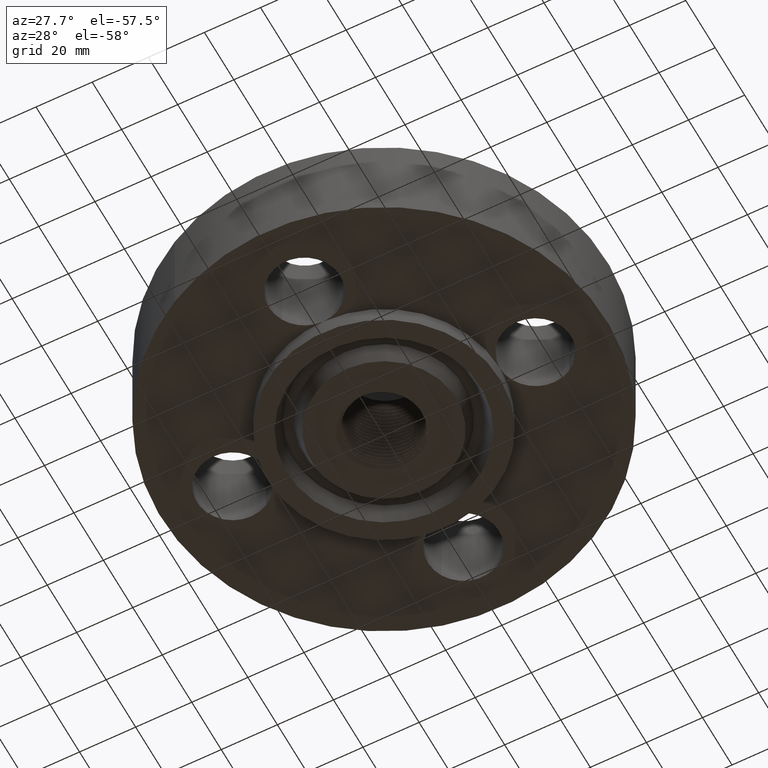
[diagram: clean part render]
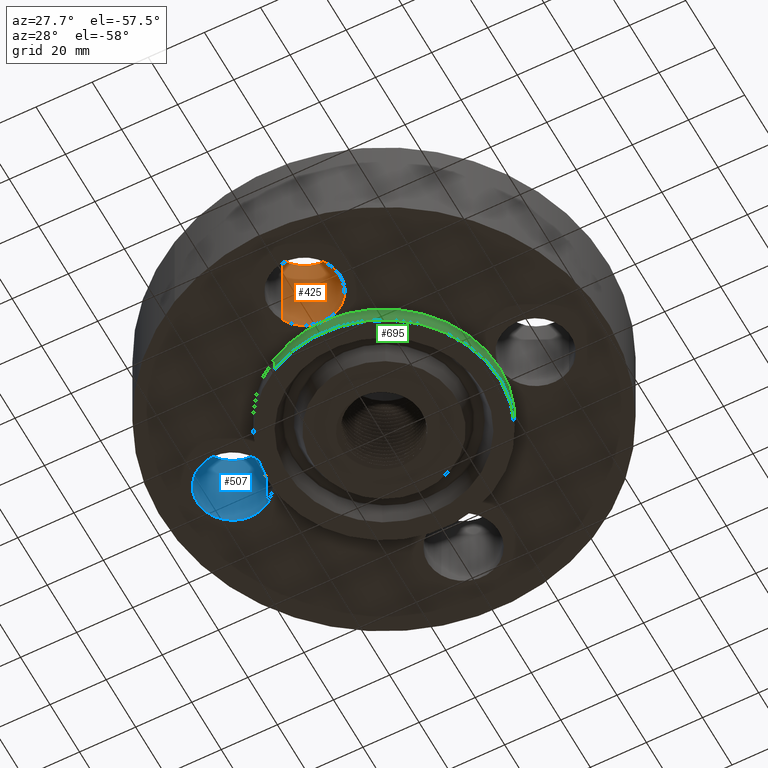
[diagram: same view with three faces highlighted in distinct colors, each labeled with its STEP entity id]
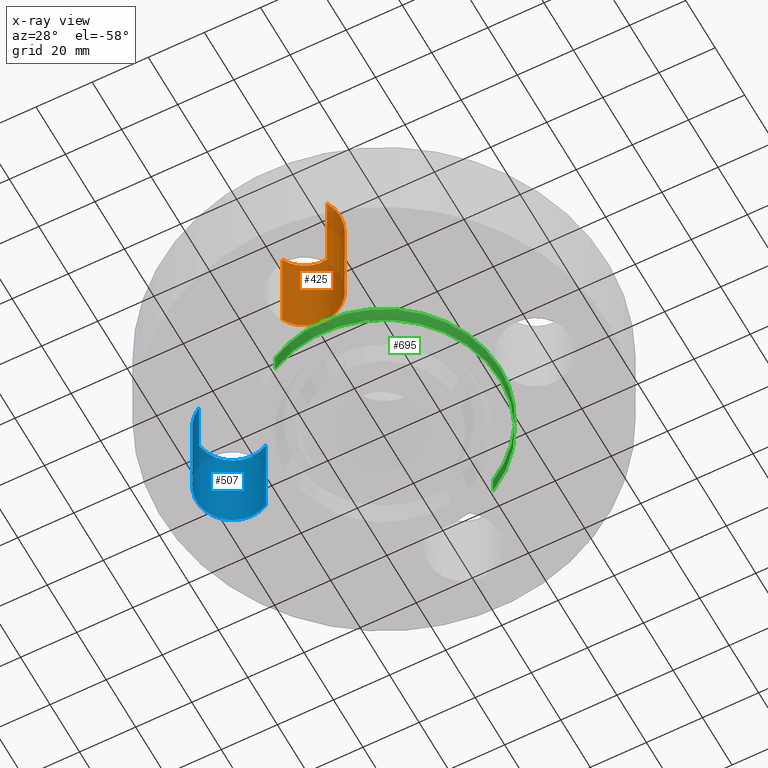
[diagram: x-ray of the same camera — body ghosted, the three highlighted faces saturated]
A machine part, auxiliary view with three faces highlighted in distinct colors.
The next image is the same camera in x-ray (body ghosted, the three faces saturated) — at least one of them is partly hidden behind the body in this view.
Their STEP definitions:

[orange] entity #425 — the highlighted cylindrical surface (partial cylindrical patch) has radius 12.7 mm, axis along (-0, 0, -1).
#381=AXIS2_PLACEMENT_3D('Cylinder Axis2P3D',#378,#379,#380) ;
#394=AXIS2_PLACEMENT_3D('Circle Axis2P3D',#392,#393,$) ;
#401=AXIS2_PLACEMENT_3D('Circle Axis2P3D',#399,#400,$) ;
#415=AXIS2_PLACEMENT_3D('Circle Axis2P3D',#413,#414,$) ;
#378=CARTESIAN_POINT('Axis2P3D Location',(2.6023744482E-016,-2.12500000001,1.37606299213)) ;
#383=CARTESIAN_POINT('Line Origine',(-0.438791280947,-1.88528723071,0.690000000003)) ;
#387=CARTESIAN_POINT('Vertex',(-0.438791280947,-1.88528723071,0.)) ;
#389=CARTESIAN_POINT('Vertex',(-0.438791280947,-1.88528723071,1.38000000001)) ;
#392=CARTESIAN_POINT('Axis2P3D Location',(2.6023744482E-016,-2.12500000001,0.)) ;
#396=CARTESIAN_POINT('Vertex',(2.05376551774E-016,-1.62500000001,0.)) ;
#399=CARTESIAN_POINT('Axis2P3D Location',(2.6023744482E-016,-2.12500000001,0.)) ;
#403=CARTESIAN_POINT('Vertex',(0.438791280947,-2.36471276931,0.)) ;
#406=CARTESIAN_POINT('Line Origine',(0.438791280947,-2.36471276931,0.690000000003)) ;
#410=CARTESIAN_POINT('Vertex',(0.438791280947,-2.36471276931,1.38000000001)) ;
#413=CARTESIAN_POINT('Axis2P3D Location',(2.6023744482E-016,-2.12500000001,1.38000000001)) ;
#379=DIRECTION('Axis2P3D Direction',(-0.,0.,-0.0393700787402)) ;
#380=DIRECTION('Axis2P3D XDirection',(0.0345504945626,-0.0188750212049,-0.)) ;
#384=DIRECTION('Vector Direction',(0.,0.,-0.0393700787402)) ;
#393=DIRECTION('Axis2P3D Direction',(-0.,0.,-0.0393700787402)) ;
#400=DIRECTION('Axis2P3D Direction',(-0.,0.,-0.0393700787402)) ;
#407=DIRECTION('Vector Direction',(0.,0.,-0.0393700787402)) ;
#414=DIRECTION('Axis2P3D Direction',(-0.,0.,-0.0393700787402)) ;
#385=VECTOR('Line Direction',#384,0.0393700787402) ;
#408=VECTOR('Line Direction',#407,0.0393700787402) ;
#419=ORIENTED_EDGE('',*,*,#391,.F.) ;
#420=ORIENTED_EDGE('',*,*,#398,.T.) ;
#421=ORIENTED_EDGE('',*,*,#405,.T.) ;
#422=ORIENTED_EDGE('',*,*,#412,.T.) ;
#423=ORIENTED_EDGE('',*,*,#417,.F.) ;
#425=ADVANCED_FACE('PartBody',(#424),#382,.F.) ;
#395=CIRCLE('generated circle',#394,0.500000000002) ;
#402=CIRCLE('generated circle',#401,0.500000000002) ;
#416=CIRCLE('generated circle',#415,0.500000000002) ;
#382=CYLINDRICAL_SURFACE('generated cylinder',#381,0.500000000002) ;
#391=EDGE_CURVE('',#388,#390,#386,.F.) ;
#398=EDGE_CURVE('',#388,#397,#395,.T.) ;
#405=EDGE_CURVE('',#397,#404,#402,.T.) ;
#412=EDGE_CURVE('',#404,#411,#409,.F.) ;
#417=EDGE_CURVE('',#390,#411,#416,.T.) ;
#418=EDGE_LOOP('',(#419,#420,#421,#422,#423)) ;
#424=FACE_OUTER_BOUND('',#418,.T.) ;
#386=LINE('Line',#383,#385) ;
#409=LINE('Line',#406,#408) ;
#388=VERTEX_POINT('',#387) ;
#390=VERTEX_POINT('',#389) ;
#397=VERTEX_POINT('',#396) ;
#404=VERTEX_POINT('',#403) ;
#411=VERTEX_POINT('',#410) ;

[blue] entity #507 — the highlighted cylindrical surface (partial cylindrical patch) has radius 12.7 mm, axis along (0, 0, -1).
#446=AXIS2_PLACEMENT_3D('Cylinder Axis2P3D',#443,#444,#445) ;
#493=AXIS2_PLACEMENT_3D('Circle Axis2P3D',#491,#492,$) ;
#498=AXIS2_PLACEMENT_3D('Circle Axis2P3D',#496,#497,$) ;
#443=CARTESIAN_POINT('Axis2P3D Location',(-2.12500000001,-1.10614932679E-016,1.37606299213)) ;
#448=CARTESIAN_POINT('Line Origine',(-1.88528723071,0.438791280947,0.690000000003)) ;
#452=CARTESIAN_POINT('Vertex',(-1.88528723071,0.438791280947,0.)) ;
#454=CARTESIAN_POINT('Vertex',(-1.88528723071,0.438791280947,1.38000000001)) ;
#468=CARTESIAN_POINT('Vertex',(-2.36471276931,-0.438791280947,0.)) ;
#471=CARTESIAN_POINT('Line Origine',(-2.36471276931,-0.438791280947,0.690000000003)) ;
#475=CARTESIAN_POINT('Vertex',(-2.36471276931,-0.438791280947,1.38000000001)) ;
#491=CARTESIAN_POINT('Axis2P3D Location',(-2.12500000001,-1.10614932679E-016,0.)) ;
#496=CARTESIAN_POINT('Axis2P3D Location',(-2.12500000001,-1.10614932679E-016,1.38000000001)) ;
#444=DIRECTION('Axis2P3D Direction',(0.,0.,-0.0393700787402)) ;
#445=DIRECTION('Axis2P3D XDirection',(-0.0188750212049,-0.0345504945626,-0.)) ;
#449=DIRECTION('Vector Direction',(0.,0.,-0.0393700787402)) ;
#472=DIRECTION('Vector Direction',(0.,0.,-0.0393700787402)) ;
#492=DIRECTION('Axis2P3D Direction',(0.,0.,-0.0393700787402)) ;
#497=DIRECTION('Axis2P3D Direction',(0.,0.,-0.0393700787402)) ;
#450=VECTOR('Line Direction',#449,0.0393700787402) ;
#473=VECTOR('Line Direction',#472,0.0393700787402) ;
#502=ORIENTED_EDGE('',*,*,#477,.F.) ;
#503=ORIENTED_EDGE('',*,*,#495,.T.) ;
#504=ORIENTED_EDGE('',*,*,#456,.T.) ;
#505=ORIENTED_EDGE('',*,*,#500,.F.) ;
#507=ADVANCED_FACE('PartBody',(#506),#447,.F.) ;
#494=CIRCLE('generated circle',#493,0.500000000002) ;
#499=CIRCLE('generated circle',#498,0.500000000002) ;
#447=CYLINDRICAL_SURFACE('generated cylinder',#446,0.500000000002) ;
#456=EDGE_CURVE('',#453,#455,#451,.F.) ;
#477=EDGE_CURVE('',#469,#476,#474,.F.) ;
#495=EDGE_CURVE('',#469,#453,#494,.T.) ;
#500=EDGE_CURVE('',#476,#455,#499,.T.) ;
#501=EDGE_LOOP('',(#502,#503,#504,#505)) ;
#506=FACE_OUTER_BOUND('',#501,.T.) ;
#451=LINE('Line',#448,#450) ;
#474=LINE('Line',#471,#473) ;
#453=VERTEX_POINT('',#452) ;
#455=VERTEX_POINT('',#454) ;
#469=VERTEX_POINT('',#468) ;
#476=VERTEX_POINT('',#475) ;

[green] entity #695 — the highlighted cylindrical surface (partial cylindrical patch) has radius 41.275 mm, axis along (0, 0, -1).
#343=AXIS2_PLACEMENT_3D('Circle Axis2P3D',#341,#342,$) ;
#598=AXIS2_PLACEMENT_3D('Circle Axis2P3D',#596,#597,$) ;
#603=AXIS2_PLACEMENT_3D('Circle Axis2P3D',#601,#602,$) ;
#648=AXIS2_PLACEMENT_3D('Circle Axis2P3D',#646,#647,$) ;
#675=AXIS2_PLACEMENT_3D('Cylinder Axis2P3D',#672,#673,#674) ;
#341=CARTESIAN_POINT('Axis2P3D Location',(0.,0.,-0.250000000001)) ;
#345=CARTESIAN_POINT('Vertex',(0.779066500235,1.42607166308,-0.250000000001)) ;
#347=CARTESIAN_POINT('Vertex',(-0.779066500235,-1.42607166308,-0.250000000001)) ;
#396=CARTESIAN_POINT('Vertex',(2.05376551774E-016,-1.62500000001,0.)) ;
#526=CARTESIAN_POINT('Vertex',(1.62500000001,2.79741234551E-016,0.)) ;
#596=CARTESIAN_POINT('Axis2P3D Location',(0.,0.,0.)) ;
#601=CARTESIAN_POINT('Axis2P3D Location',(0.,0.,0.)) ;
#605=CARTESIAN_POINT('Vertex',(0.779066500235,1.42607166308,1.39870617276E-016)) ;
#643=CARTESIAN_POINT('Vertex',(-0.779066500235,-1.42607166308,1.39870617276E-016)) ;
#646=CARTESIAN_POINT('Axis2P3D Location',(0.,0.,0.)) ;
#672=CARTESIAN_POINT('Axis2P3D Location',(0.,0.,0.815000000003)) ;
#677=CARTESIAN_POINT('Line Origine',(0.779066500235,1.42607166308,-0.125)) ;
#682=CARTESIAN_POINT('Line Origine',(-0.779066500235,-1.42607166308,-0.125)) ;
#342=DIRECTION('Axis2P3D Direction',(0.,0.,-0.0393700787402)) ;
#597=DIRECTION('Axis2P3D Direction',(0.,0.,-0.0393700787402)) ;
#602=DIRECTION('Axis2P3D Direction',(0.,0.,-0.0393700787402)) ;
#647=DIRECTION('Axis2P3D Direction',(0.,0.,-0.0393700787402)) ;
#673=DIRECTION('Axis2P3D Direction',(0.,0.,-0.0393700787402)) ;
#674=DIRECTION('Axis2P3D XDirection',(-0.0188750212049,-0.0345504945626,0.)) ;
#678=DIRECTION('Vector Direction',(0.,0.,-0.0393700787402)) ;
#683=DIRECTION('Vector Direction',(0.,0.,-0.0393700787402)) ;
#679=VECTOR('Line Direction',#678,0.0393700787402) ;
#684=VECTOR('Line Direction',#683,0.0393700787402) ;
#688=ORIENTED_EDGE('',*,*,#349,.F.) ;
#689=ORIENTED_EDGE('',*,*,#681,.T.) ;
#690=ORIENTED_EDGE('',*,*,#607,.T.) ;
#691=ORIENTED_EDGE('',*,*,#600,.T.) ;
#692=ORIENTED_EDGE('',*,*,#650,.T.) ;
#693=ORIENTED_EDGE('',*,*,#686,.F.) ;
#695=ADVANCED_FACE('PartBody',(#694),#676,.T.) ;
#344=CIRCLE('generated circle',#343,1.62500000001) ;
#599=CIRCLE('generated circle',#598,1.62500000001) ;
#604=CIRCLE('generated circle',#603,1.62500000001) ;
#649=CIRCLE('generated circle',#648,1.62500000001) ;
#676=CYLINDRICAL_SURFACE('generated cylinder',#675,1.62500000001) ;
#349=EDGE_CURVE('',#346,#348,#344,.T.) ;
#600=EDGE_CURVE('',#527,#397,#599,.T.) ;
#607=EDGE_CURVE('',#606,#527,#604,.T.) ;
#650=EDGE_CURVE('',#397,#644,#649,.T.) ;
#681=EDGE_CURVE('',#346,#606,#680,.F.) ;
#686=EDGE_CURVE('',#348,#644,#685,.F.) ;
#687=EDGE_LOOP('',(#688,#689,#690,#691,#692,#693)) ;
#694=FACE_OUTER_BOUND('',#687,.T.) ;
#680=LINE('Line',#677,#679) ;
#685=LINE('Line',#682,#684) ;
#346=VERTEX_POINT('',#345) ;
#348=VERTEX_POINT('',#347) ;
#397=VERTEX_POINT('',#396) ;
#527=VERTEX_POINT('',#526) ;
#606=VERTEX_POINT('',#605) ;
#644=VERTEX_POINT('',#643) ;